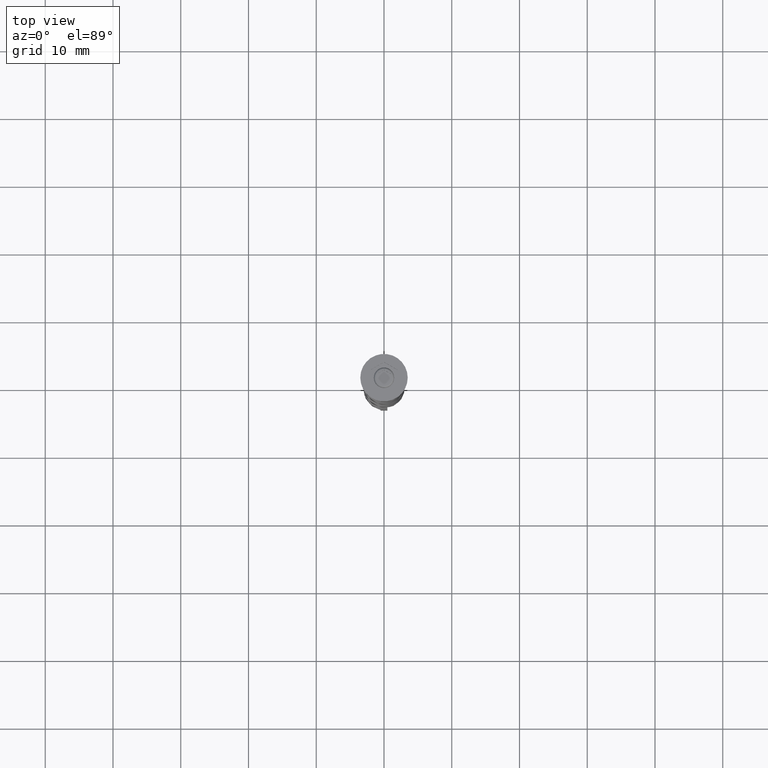
[diagram: clean part render]
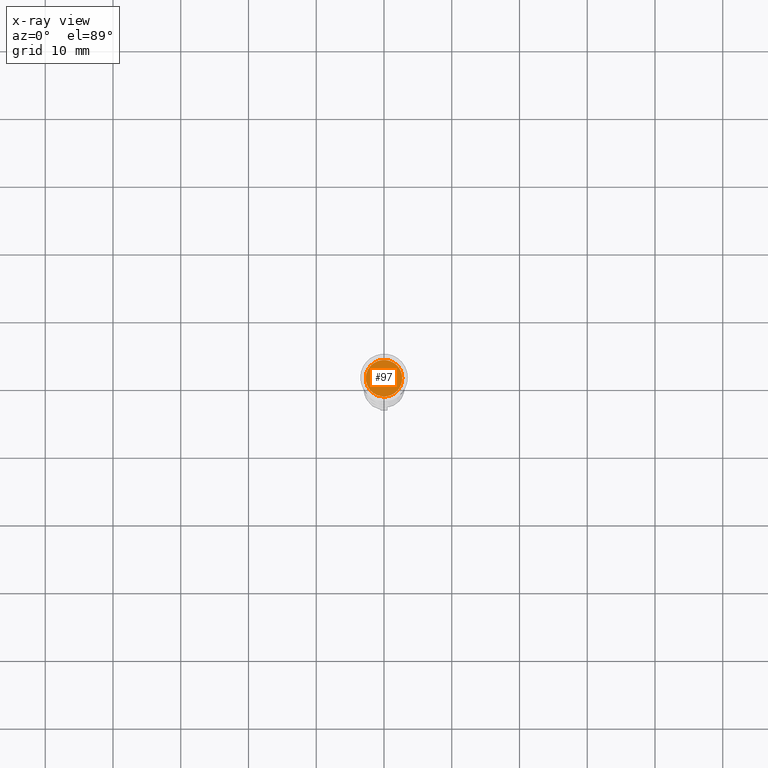
[diagram: x-ray — body ghosted, one internal face saturated and labeled with its STEP entity id]
A machine part, top view, then the same camera in x-ray: the body is ghosted and one INTERNAL B-rep face — a face not visible from any outside direction — is saturated and labeled: STEP entity #97.
In plain terms, the highlighted planar face has unit normal (0, 0, -1).
Its self-contained STEP definition (entity closure, byte-faithful):
#97 = ADVANCED_FACE ( 'NONE', ( #2095 ), #477, .F. ) ;
#305 = CIRCLE ( 'NONE', #865, 2.700000000000002398 ) ;
#428 = EDGE_CURVE ( 'NONE', #2512, #529, #1845, .T. ) ;
#477 = PLANE ( 'NONE',  #2015 ) ;
#529 = VERTEX_POINT ( 'NONE', #2784 ) ;
#551 = CARTESIAN_POINT ( 'NONE',  ( 0.000000000000000000, 0.000000000000000000, -5.500000000000000000 ) ) ;
#813 = CARTESIAN_POINT ( 'NONE',  ( -2.700000000000002398, 0.000000000000000000, -5.500000000000000000 ) ) ;
#865 = AXIS2_PLACEMENT_3D ( 'NONE', #1793, #2602, #996 ) ;
#996 = DIRECTION ( 'NONE',  ( -1.000000000000000000, 0.000000000000000000, 0.000000000000000000 ) ) ;
#1193 = CARTESIAN_POINT ( 'NONE',  ( 0.000000000000000000, 0.000000000000000000, -5.500000000000000000 ) ) ;
#1793 = CARTESIAN_POINT ( 'NONE',  ( 0.000000000000000000, 0.000000000000000000, -5.500000000000000000 ) ) ;
#1845 = CIRCLE ( 'NONE', #3072, 2.700000000000002398 ) ;
#2015 = AXIS2_PLACEMENT_3D ( 'NONE', #551, #2678, #2621 ) ;
#2095 = FACE_OUTER_BOUND ( 'NONE', #2740, .T. ) ;
#2257 = ORIENTED_EDGE ( 'NONE', *, *, #428, .T. ) ;
#2456 = ORIENTED_EDGE ( 'NONE', *, *, #2873, .T. ) ;
#2512 = VERTEX_POINT ( 'NONE', #813 ) ;
#2598 = DIRECTION ( 'NONE',  ( -0.000000000000000000, -0.000000000000000000, 1.000000000000000000 ) ) ;
#2602 = DIRECTION ( 'NONE',  ( -0.000000000000000000, -0.000000000000000000, 1.000000000000000000 ) ) ;
#2621 = DIRECTION ( 'NONE',  ( -1.000000000000000000, 0.000000000000000000, -0.000000000000000000 ) ) ;
#2678 = DIRECTION ( 'NONE',  ( 0.000000000000000000, 0.000000000000000000, -1.000000000000000000 ) ) ;
#2740 = EDGE_LOOP ( 'NONE', ( #2257, #2456 ) ) ;
#2784 = CARTESIAN_POINT ( 'NONE',  ( 2.700000000000002398, 3.490243377569959512E-16, -5.500000000000000000 ) ) ;
#2873 = EDGE_CURVE ( 'NONE', #529, #2512, #305, .T. ) ;
#3072 = AXIS2_PLACEMENT_3D ( 'NONE', #1193, #2598, #3419 ) ;
#3419 = DIRECTION ( 'NONE',  ( -1.000000000000000000, 0.000000000000000000, 0.000000000000000000 ) ) ;